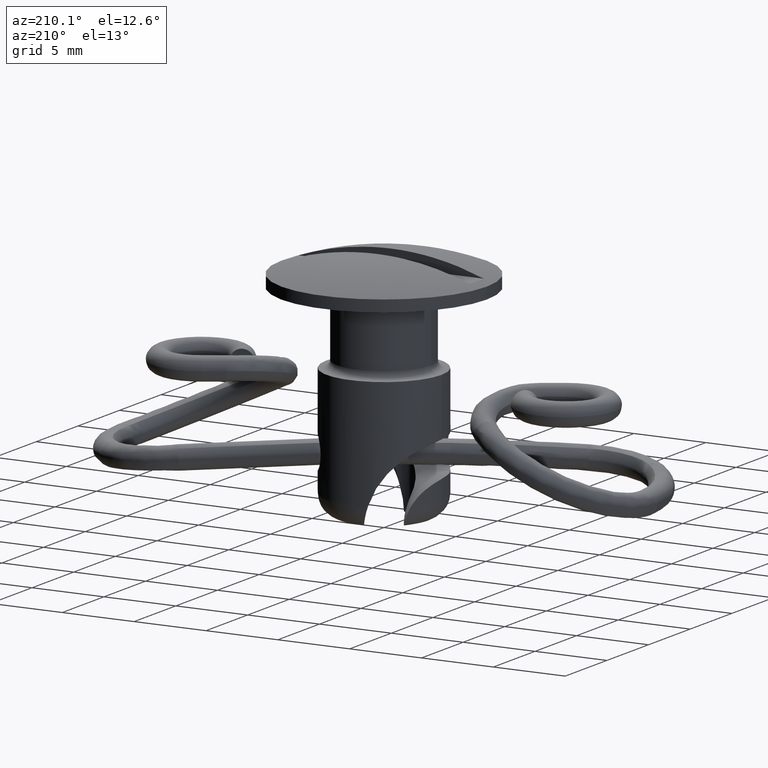
[diagram: clean part render]
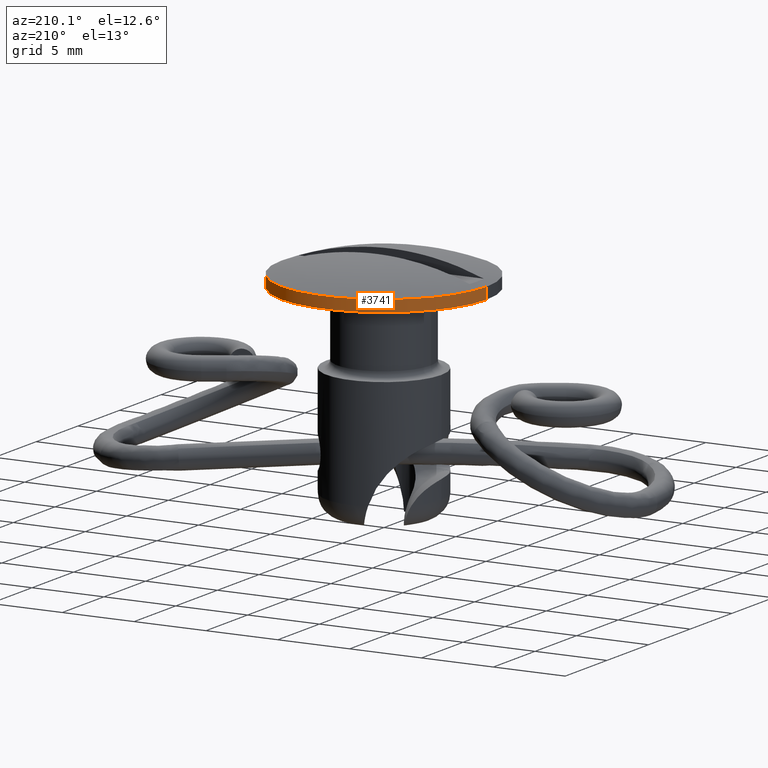
[diagram: same view with one face highlighted and labeled with its STEP entity id]
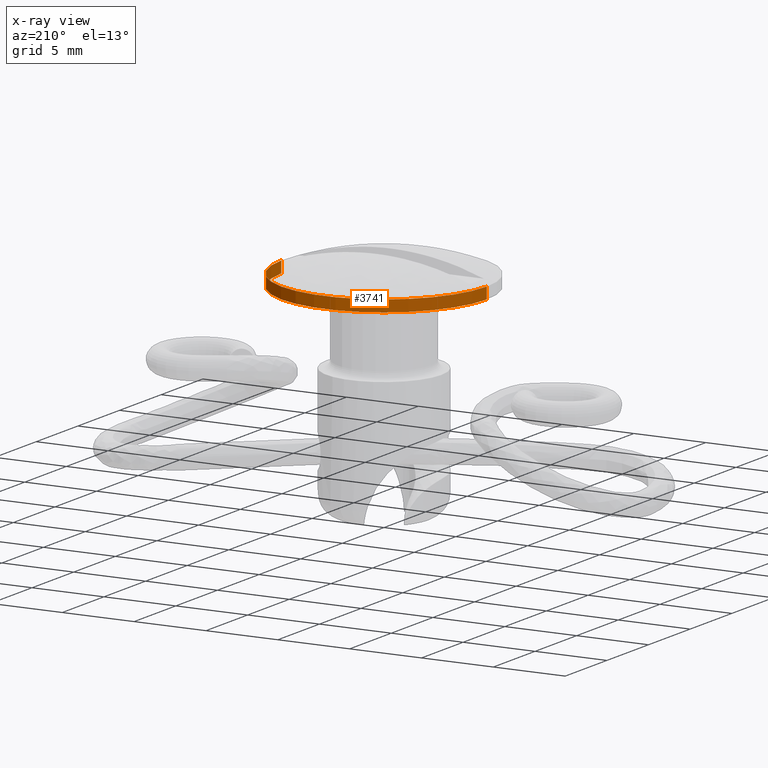
[diagram: x-ray of the same camera — body ghosted, the highlighted face saturated]
A machine part, auxiliary view. The second image highlights one B-rep face of the part: STEP entity #3741.
The next image is the same camera in x-ray: the body ghosted, the highlighted face saturated — about 0% of this face is hidden behind the body in this view.
In plain terms, the highlighted cylindrical surface (partial cylindrical patch) has radius 7.15 mm, axis along (-0, -0, -1).
Its self-contained STEP definition (entity closure, byte-faithful):
#106 = ORIENTED_EDGE ( 'NONE', *, *, #7596, .T. ) ;
#288 = VECTOR ( 'NONE', #2854, 1000.000000000000000 ) ;
#397 = CIRCLE ( 'NONE', #1241, 7.150000000000000400 ) ;
#585 = CARTESIAN_POINT ( 'NONE',  ( 0.0000000000000000000, -3.999999997006400700E-006, 10.94406900000000100 ) ) ;
#1105 = VERTEX_POINT ( 'NONE', #3853 ) ;
#1241 = AXIS2_PLACEMENT_3D ( 'NONE', #1745, #6622, #2445 ) ;
#1291 = DIRECTION ( 'NONE',  ( -0.0000000000000000000, -0.0000000000000000000, -1.000000000000000000 ) ) ;
#1745 = CARTESIAN_POINT ( 'NONE',  ( 0.0000000000000000000, -3.999999997006400700E-006, 10.94406900000000100 ) ) ;
#1918 = EDGE_CURVE ( 'NONE', #4145, #1105, #2247, .T. ) ;
#2211 = CARTESIAN_POINT ( 'NONE',  ( 7.150000000000000400, -3.999999996130777900E-006, 10.94406900000000100 ) ) ;
#2247 = LINE ( 'NONE', #2211, #7616 ) ;
#2307 = VERTEX_POINT ( 'NONE', #5855 ) ;
#2445 = DIRECTION ( 'NONE',  ( 1.000000000000000000, 0.0000000000000000000, 0.0000000000000000000 ) ) ;
#2511 = ORIENTED_EDGE ( 'NONE', *, *, #3215, .F. ) ;
#2631 = ORIENTED_EDGE ( 'NONE', *, *, #6768, .F. ) ;
#2689 = DIRECTION ( 'NONE',  ( 0.0000000000000000000, 0.0000000000000000000, 1.000000000000000000 ) ) ;
#2854 = DIRECTION ( 'NONE',  ( -0.0000000000000000000, -0.0000000000000000000, -1.000000000000000000 ) ) ;
#2940 = DIRECTION ( 'NONE',  ( -0.0000000000000000000, -0.0000000000000000000, -1.000000000000000000 ) ) ;
#3215 = EDGE_CURVE ( 'NONE', #7614, #2307, #5841, .T. ) ;
#3355 = CYLINDRICAL_SURFACE ( 'NONE', #5070, 7.150000000000000400 ) ;
#3387 = CARTESIAN_POINT ( 'NONE',  ( -7.150000000000000400, -3.999999997006400700E-006, 10.94406900000000100 ) ) ;
#3741 = ADVANCED_FACE ( 'NONE', ( #7282 ), #3355, .T. ) ;
#3853 = CARTESIAN_POINT ( 'NONE',  ( 7.150000000000000400, -3.999999996130777900E-006, 10.14406900000000000 ) ) ;
#4145 = VERTEX_POINT ( 'NONE', #7192 ) ;
#4208 = AXIS2_PLACEMENT_3D ( 'NONE', #6868, #2689, #7566 ) ;
#4455 = CARTESIAN_POINT ( 'NONE',  ( -7.150000000000000400, -3.999999997006400700E-006, 10.94406900000000100 ) ) ;
#5070 = AXIS2_PLACEMENT_3D ( 'NONE', #585, #1291, #8969 ) ;
#5841 = LINE ( 'NONE', #4455, #288 ) ;
#5855 = CARTESIAN_POINT ( 'NONE',  ( -7.150000000000000400, -3.999999997006400700E-006, 10.14406900000000000 ) ) ;
#6622 = DIRECTION ( 'NONE',  ( 0.0000000000000000000, 0.0000000000000000000, 1.000000000000000000 ) ) ;
#6768 = EDGE_CURVE ( 'NONE', #4145, #7614, #397, .T. ) ;
#6868 = CARTESIAN_POINT ( 'NONE',  ( 0.0000000000000000000, -3.999999997006400700E-006, 10.14406900000000000 ) ) ;
#7192 = CARTESIAN_POINT ( 'NONE',  ( 7.150000000000000400, -3.999999996130777900E-006, 10.94406900000000100 ) ) ;
#7282 = FACE_OUTER_BOUND ( 'NONE', #7880, .T. ) ;
#7566 = DIRECTION ( 'NONE',  ( 1.000000000000000000, 0.0000000000000000000, 0.0000000000000000000 ) ) ;
#7593 = ORIENTED_EDGE ( 'NONE', *, *, #1918, .T. ) ;
#7596 = EDGE_CURVE ( 'NONE', #1105, #2307, #7933, .T. ) ;
#7614 = VERTEX_POINT ( 'NONE', #3387 ) ;
#7616 = VECTOR ( 'NONE', #2940, 1000.000000000000000 ) ;
#7880 = EDGE_LOOP ( 'NONE', ( #2631, #7593, #106, #2511 ) ) ;
#7933 = CIRCLE ( 'NONE', #4208, 7.150000000000000400 ) ;
#8969 = DIRECTION ( 'NONE',  ( -1.000000000000000000, 0.0000000000000000000, 0.0000000000000000000 ) ) ;